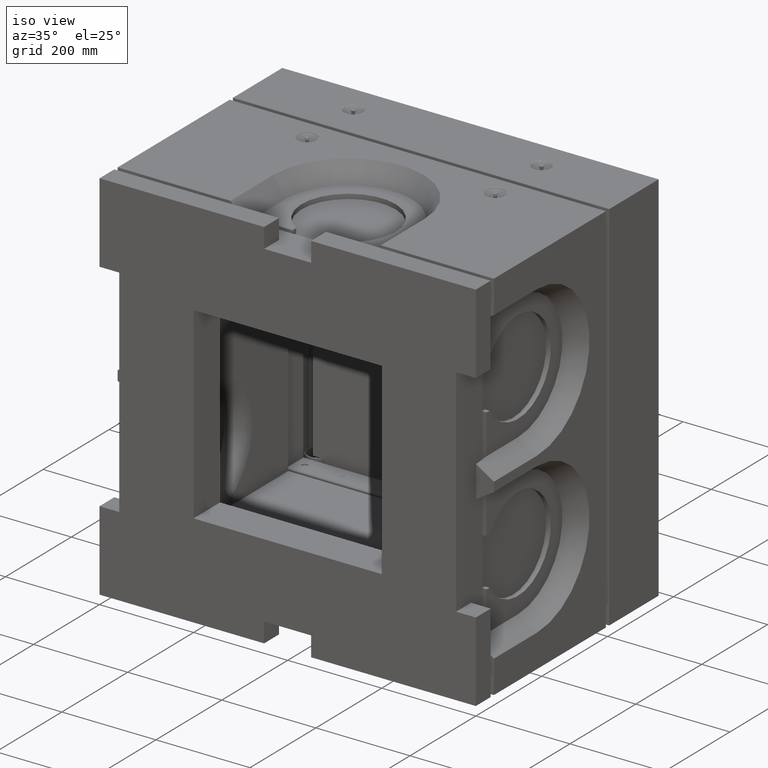
[diagram: clean part render]
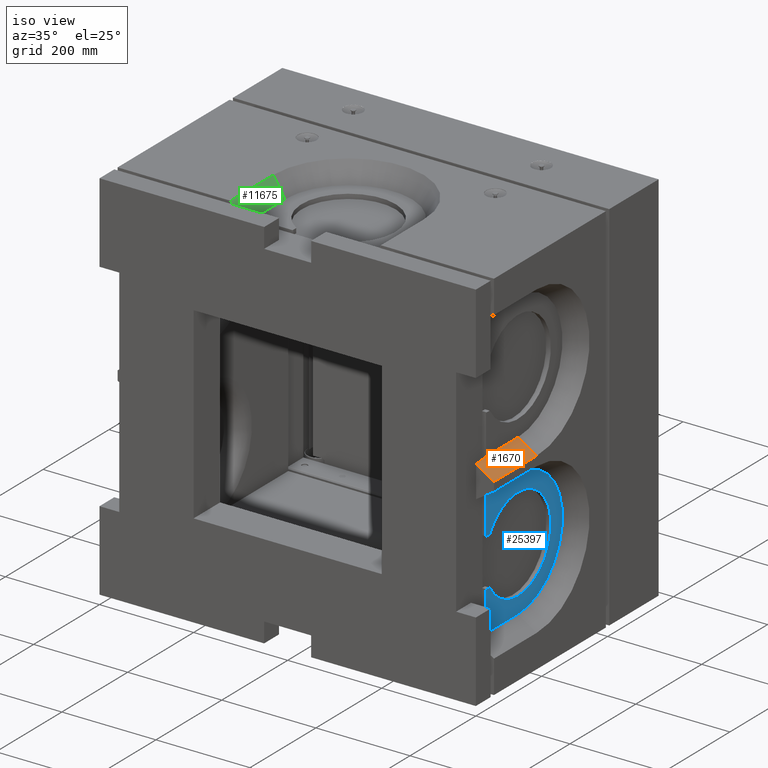
[diagram: same view with three faces highlighted in distinct colors, each labeled with its STEP entity id]
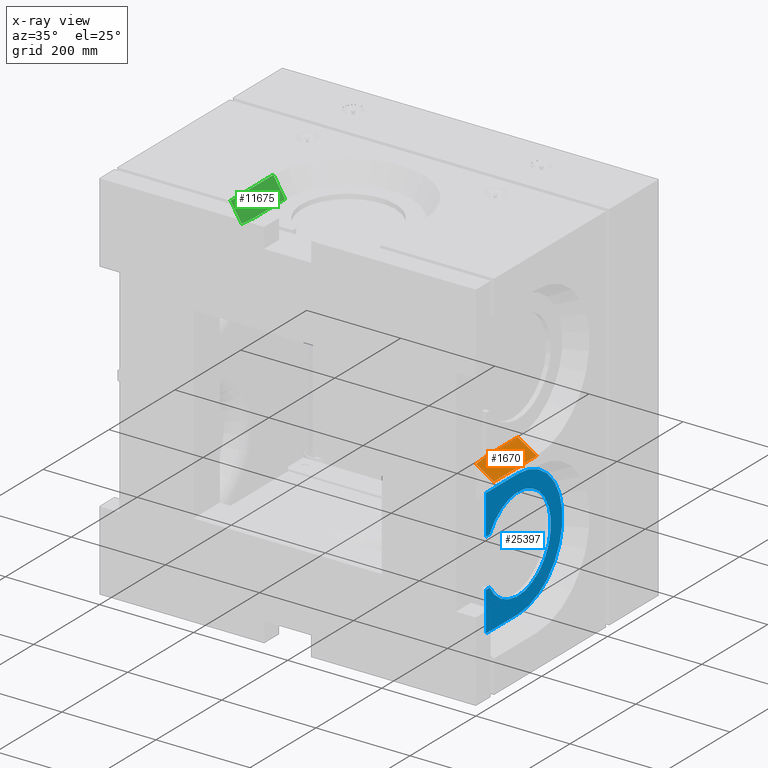
[diagram: x-ray of the same camera — body ghosted, the three highlighted faces saturated]
A machine part, iso view with three faces highlighted in distinct colors.
The next image is the same camera in x-ray (body ghosted, the three faces saturated) — at least one of them is partly hidden behind the body in this view.
Their STEP definitions:

[orange] entity #1670 — the highlighted planar face has unit normal (-0.5299, -0, -0.848).
#1172 = CARTESIAN_POINT ( 'NONE',  ( 399.9999999999999432, 54.99999999999999289, 10.00000000000006395 ) ) ;
#1670 = ADVANCED_FACE ( 'NONE', ( #7669 ), #19352, .F. ) ;
#3301 = EDGE_CURVE ( 'NONE', #21903, #15311, #13642, .T. ) ;
#3563 = VERTEX_POINT ( 'NONE', #1172 ) ;
#4047 = CARTESIAN_POINT ( 'NONE',  ( 362.0000000000000000, 54.99999999999999289, 33.74503537255446872 ) ) ;
#5375 = ORIENTED_EDGE ( 'NONE', *, *, #6649, .T. ) ;
#5612 = DIRECTION ( 'NONE',  ( -0.8480480961564252906, 0.0000000000000000000, 0.5299192642332060110 ) ) ;
#5616 = VECTOR ( 'NONE', #13542, 1000.000000000000114 ) ;
#6649 = EDGE_CURVE ( 'NONE', #9135, #21903, #11828, .T. ) ;
#6664 = ORIENTED_EDGE ( 'NONE', *, *, #3301, .T. ) ;
#6886 = EDGE_CURVE ( 'NONE', #9690, #3563, #16447, .T. ) ;
#7669 = FACE_OUTER_BOUND ( 'NONE', #12696, .T. ) ;
#8696 = VECTOR ( 'NONE', #10440, 1000.000000000000227 ) ;
#9135 = VERTEX_POINT ( 'NONE', #9435 ) ;
#9271 = LINE ( 'NONE', #23683, #19497 ) ;
#9435 = CARTESIAN_POINT ( 'NONE',  ( 360.0000000000000000, 184.9999999999999716, 34.99477407637319004 ) ) ;
#9690 = VERTEX_POINT ( 'NONE', #21637 ) ;
#10440 = DIRECTION ( 'NONE',  ( 0.06044789888667913280, -0.9974564273990266239, -0.03777203940159963580 ) ) ;
#10892 = LINE ( 'NONE', #25076, #5616 ) ;
#10896 = CARTESIAN_POINT ( 'NONE',  ( 399.9999999999999432, 184.9999999999999716, 10.00000000000000888 ) ) ;
#11828 = LINE ( 'NONE', #24060, #21672 ) ;
#12696 = EDGE_LOOP ( 'NONE', ( #24171, #24272, #5375, #6664, #15824 ) ) ;
#13469 = DIRECTION ( 'NONE',  ( -0.5299192642332060110, -1.883045044684784401E-16, -0.8480480961564252906 ) ) ;
#13542 = DIRECTION ( 'NONE',  ( -0.8480480961564252906, -0.0000000000000000000, 0.5299192642332060110 ) ) ;
#13642 = LINE ( 'NONE', #14317, #8696 ) ;
#14317 = CARTESIAN_POINT ( 'NONE',  ( 362.9035810601799312, 40.08992450106202199, 33.18041526108223138 ) ) ;
#14796 = EDGE_CURVE ( 'NONE', #9135, #9690, #9271, .T. ) ;
#15311 = VERTEX_POINT ( 'NONE', #4047 ) ;
#15824 = ORIENTED_EDGE ( 'NONE', *, *, #25229, .F. ) ;
#16447 = LINE ( 'NONE', #10896, #24699 ) ;
#19085 = DIRECTION ( 'NONE',  ( -0.0000000000000000000, -1.000000000000000000, 2.220446049250313574E-16 ) ) ;
#19352 = PLANE ( 'NONE',  #25558 ) ;
#19405 = DIRECTION ( 'NONE',  ( 0.8480480961564252906, -1.176657136688255272E-16, -0.5299192642332060110 ) ) ;
#19497 = VECTOR ( 'NONE', #19405, 1000.000000000000114 ) ;
#20902 = CARTESIAN_POINT ( 'NONE',  ( 360.0000000000000000, 88.00218686737001406, 34.99477407637313320 ) ) ;
#21637 = CARTESIAN_POINT ( 'NONE',  ( 399.9999999999999432, 184.9999999999999716, 10.00000000000000888 ) ) ;
#21672 = VECTOR ( 'NONE', #22191, 1000.000000000000000 ) ;
#21903 = VERTEX_POINT ( 'NONE', #20902 ) ;
#22191 = DIRECTION ( 'NONE',  ( -0.0000000000000000000, -1.000000000000000000, 2.220446049250313574E-16 ) ) ;
#23683 = CARTESIAN_POINT ( 'NONE',  ( 399.9999999999999432, 184.9999999999999716, 10.00000000000000888 ) ) ;
#24060 = CARTESIAN_POINT ( 'NONE',  ( 360.0000000000000000, 184.9999999999999716, 34.99477407637313320 ) ) ;
#24171 = ORIENTED_EDGE ( 'NONE', *, *, #6886, .F. ) ;
#24272 = ORIENTED_EDGE ( 'NONE', *, *, #14796, .F. ) ;
#24699 = VECTOR ( 'NONE', #19085, 1000.000000000000000 ) ;
#25076 = CARTESIAN_POINT ( 'NONE',  ( -350.6132977439678484, 54.99999999999999289, 479.0352448957975184 ) ) ;
#25229 = EDGE_CURVE ( 'NONE', #3563, #15311, #10892, .T. ) ;
#25259 = CARTESIAN_POINT ( 'NONE',  ( 399.9999999999999432, 184.9999999999999716, 10.00000000000000888 ) ) ;
#25558 = AXIS2_PLACEMENT_3D ( 'NONE', #25259, #13469, #5612 ) ;

[blue] entity #25397 — the highlighted planar face has unit normal (1, 0, -0).
#49 = VERTEX_POINT ( 'NONE', #21788 ) ;
#612 = CARTESIAN_POINT ( 'NONE',  ( 359.9999999999999432, 98.98255990788840109, -220.9999999999999147 ) ) ;
#1159 = LINE ( 'NONE', #18587, #20897 ) ;
#1287 = CARTESIAN_POINT ( 'NONE',  ( 360.0000000000000000, 184.9999999999999716, -305.0052259236268242 ) ) ;
#1635 = CARTESIAN_POINT ( 'NONE',  ( 360.0000000000000000, 88.00218686737007090, -34.99477407637313320 ) ) ;
#1824 = VECTOR ( 'NONE', #14709, 1000.000000000000000 ) ;
#2400 = VECTOR ( 'NONE', #16762, 1000.000000000000000 ) ;
#2445 = EDGE_CURVE ( 'NONE', #14353, #49, #11183, .T. ) ;
#2504 = PLANE ( 'NONE',  #15656 ) ;
#3324 = LINE ( 'NONE', #8566, #1824 ) ;
#3811 = VECTOR ( 'NONE', #5639, 1000.000000000000000 ) ;
#4225 = CIRCLE ( 'NONE', #7477, 135.0052259236268526 ) ;
#4543 = EDGE_CURVE ( 'NONE', #18458, #21763, #3324, .T. ) ;
#4544 = DIRECTION ( 'NONE',  ( 0.0000000000000000000, 0.0000000000000000000, 1.000000000000000000 ) ) ;
#4818 = LINE ( 'NONE', #9213, #2400 ) ;
#5029 = DIRECTION ( 'NONE',  ( 0.0000000000000000000, 3.162965100408823905E-16, -1.000000000000000000 ) ) ;
#5179 = EDGE_CURVE ( 'NONE', #10261, #14353, #1159, .T. ) ;
#5186 = CARTESIAN_POINT ( 'NONE',  ( 359.9999999999999432, 185.0000000000000000, -169.9999999999999716 ) ) ;
#5206 = CARTESIAN_POINT ( 'NONE',  ( 360.0000000000000000, 88.00218686737018459, -361.9999999999999432 ) ) ;
#5399 = LINE ( 'NONE', #7366, #3811 ) ;
#5443 = DIRECTION ( 'NONE',  ( -1.000000000000000000, -0.0000000000000000000, 0.0000000000000000000 ) ) ;
#5639 = DIRECTION ( 'NONE',  ( -0.0000000000000000000, 1.000000000000000000, -2.220446049250313081E-16 ) ) ;
#5717 = ORIENTED_EDGE ( 'NONE', *, *, #2445, .T. ) ;
#6035 = ORIENTED_EDGE ( 'NONE', *, *, #10014, .F. ) ;
#6139 = ORIENTED_EDGE ( 'NONE', *, *, #15038, .T. ) ;
#6486 = LINE ( 'NONE', #5206, #21301 ) ;
#6549 = FACE_OUTER_BOUND ( 'NONE', #13751, .T. ) ;
#6949 = DIRECTION ( 'NONE',  ( 0.0000000000000000000, -1.000000000000000000, 0.0000000000000000000 ) ) ;
#7366 = CARTESIAN_POINT ( 'NONE',  ( 360.0000000000000000, 185.0000000000000284, -34.99477407637313320 ) ) ;
#7477 = AXIS2_PLACEMENT_3D ( 'NONE', #19305, #9626, #19393 ) ;
#8304 = CARTESIAN_POINT ( 'NONE',  ( 360.0000000000000000, 88.00218686737011353, -305.0052259236268242 ) ) ;
#8566 = CARTESIAN_POINT ( 'NONE',  ( 360.0000000000000000, 88.00218686737018459, -361.9999999999999432 ) ) ;
#8864 = DIRECTION ( 'NONE',  ( 0.0000000000000000000, 1.000000000000000000, 0.0000000000000000000 ) ) ;
#9213 = CARTESIAN_POINT ( 'NONE',  ( 360.0000000000000000, 185.0000000000000000, -305.0052259236268242 ) ) ;
#9346 = ORIENTED_EDGE ( 'NONE', *, *, #5179, .T. ) ;
#9357 = VECTOR ( 'NONE', #6949, 1000.000000000000000 ) ;
#9626 = DIRECTION ( 'NONE',  ( -1.000000000000000000, -0.0000000000000000000, -0.0000000000000000000 ) ) ;
#10014 = EDGE_CURVE ( 'NONE', #22804, #14661, #4225, .T. ) ;
#10261 = VERTEX_POINT ( 'NONE', #16305 ) ;
#10368 = CARTESIAN_POINT ( 'NONE',  ( 360.0000000000000000, 185.0000000000000000, -169.9999999999999716 ) ) ;
#10466 = EDGE_CURVE ( 'NONE', #49, #18458, #15534, .T. ) ;
#11183 = CIRCLE ( 'NONE', #14635, 100.0000000000000000 ) ;
#11760 = CARTESIAN_POINT ( 'NONE',  ( 360.0000000000000000, 185.0000000000000000, -34.99477407637313320 ) ) ;
#13270 = ORIENTED_EDGE ( 'NONE', *, *, #18229, .F. ) ;
#13751 = EDGE_LOOP ( 'NONE', ( #5717, #14110, #17724, #17628, #6035, #13270, #6139, #9346 ) ) ;
#14110 = ORIENTED_EDGE ( 'NONE', *, *, #10466, .T. ) ;
#14353 = VERTEX_POINT ( 'NONE', #16421 ) ;
#14635 = AXIS2_PLACEMENT_3D ( 'NONE', #5186, #5443, #23110 ) ;
#14661 = VERTEX_POINT ( 'NONE', #1287 ) ;
#14709 = DIRECTION ( 'NONE',  ( 0.0000000000000000000, 3.162965100408823905E-16, -1.000000000000000000 ) ) ;
#15038 = EDGE_CURVE ( 'NONE', #19813, #10261, #6486, .T. ) ;
#15534 = LINE ( 'NONE', #612, #9357 ) ;
#15656 = AXIS2_PLACEMENT_3D ( 'NONE', #10368, #24129, #4544 ) ;
#16305 = CARTESIAN_POINT ( 'NONE',  ( 359.9999999999999432, 88.00218686737011353, -118.9999999999999432 ) ) ;
#16421 = CARTESIAN_POINT ( 'NONE',  ( 360.0000000000000000, 98.98255990788848635, -118.9999999999999432 ) ) ;
#16697 = EDGE_CURVE ( 'NONE', #14661, #21763, #4818, .T. ) ;
#16762 = DIRECTION ( 'NONE',  ( -0.0000000000000000000, -1.000000000000000000, -0.0000000000000000000 ) ) ;
#17628 = ORIENTED_EDGE ( 'NONE', *, *, #16697, .F. ) ;
#17724 = ORIENTED_EDGE ( 'NONE', *, *, #4543, .T. ) ;
#18229 = EDGE_CURVE ( 'NONE', #19813, #22804, #5399, .T. ) ;
#18458 = VERTEX_POINT ( 'NONE', #23739 ) ;
#18587 = CARTESIAN_POINT ( 'NONE',  ( 360.0000000000000000, 185.0000000000000000, -118.9999999999999432 ) ) ;
#19305 = CARTESIAN_POINT ( 'NONE',  ( 360.0000000000000000, 185.0000000000000000, -169.9999999999999716 ) ) ;
#19393 = DIRECTION ( 'NONE',  ( 0.0000000000000000000, 0.0000000000000000000, -1.000000000000000000 ) ) ;
#19813 = VERTEX_POINT ( 'NONE', #1635 ) ;
#20897 = VECTOR ( 'NONE', #8864, 1000.000000000000000 ) ;
#21301 = VECTOR ( 'NONE', #5029, 1000.000000000000000 ) ;
#21763 = VERTEX_POINT ( 'NONE', #8304 ) ;
#21788 = CARTESIAN_POINT ( 'NONE',  ( 359.9999999999999432, 98.98255990788840109, -220.9999999999999147 ) ) ;
#22804 = VERTEX_POINT ( 'NONE', #11760 ) ;
#23110 = DIRECTION ( 'NONE',  ( 0.0000000000000000000, 0.0000000000000000000, 1.000000000000000000 ) ) ;
#23739 = CARTESIAN_POINT ( 'NONE',  ( 359.9999999999999432, 88.00218686737011353, -220.9999999999999147 ) ) ;
#24129 = DIRECTION ( 'NONE',  ( 1.000000000000000000, 0.0000000000000000000, -0.0000000000000000000 ) ) ;
#25397 = ADVANCED_FACE ( 'NONE', ( #6549 ), #2504, .T. ) ;

[green] entity #11675 — the highlighted planar face has unit normal (-0.848, 0, -0.5299).
#1503 = VERTEX_POINT ( 'NONE', #18775 ) ;
#1671 = EDGE_CURVE ( 'NONE', #15927, #22717, #25221, .T. ) ;
#2002 = CARTESIAN_POINT ( 'NONE',  ( -136.2549646274454744, 54.99999999999999289, 362.0000000000000000 ) ) ;
#3744 = CARTESIAN_POINT ( 'NONE',  ( -227.3954623853109922, 54.99999999999999289, 507.8552855559000818 ) ) ;
#3838 = VERTEX_POINT ( 'NONE', #24118 ) ;
#3903 = CARTESIAN_POINT ( 'NONE',  ( -135.0052259236269094, 88.00218686736988616, 360.0000000000000000 ) ) ;
#4023 = VECTOR ( 'NONE', #15455, 1000.000000000000000 ) ;
#4759 = CARTESIAN_POINT ( 'NONE',  ( -160.0000000000000853, -65.00000000000002842, 399.9999999999999432 ) ) ;
#4815 = CARTESIAN_POINT ( 'NONE',  ( -160.0000000000000853, -65.00000000000002842, 399.9999999999999432 ) ) ;
#6923 = EDGE_CURVE ( 'NONE', #3838, #17952, #10869, .T. ) ;
#8631 = FACE_OUTER_BOUND ( 'NONE', #15237, .T. ) ;
#8939 = DIRECTION ( 'NONE',  ( -0.5299192642332060110, 0.0000000000000000000, 0.8480480961564252906 ) ) ;
#9339 = AXIS2_PLACEMENT_3D ( 'NONE', #4815, #22677, #8939 ) ;
#9452 = LINE ( 'NONE', #22797, #17490 ) ;
#9964 = LINE ( 'NONE', #21371, #15535 ) ;
#10296 = ORIENTED_EDGE ( 'NONE', *, *, #1671, .T. ) ;
#10869 = LINE ( 'NONE', #23020, #4023 ) ;
#11675 = ADVANCED_FACE ( 'NONE', ( #8631 ), #24639, .F. ) ;
#12563 = DIRECTION ( 'NONE',  ( -0.0000000000000000000, -1.000000000000000000, 0.0000000000000000000 ) ) ;
#12959 = DIRECTION ( 'NONE',  ( -0.5299192642332060110, 9.192633880376989613E-17, 0.8480480961564252906 ) ) ;
#13607 = EDGE_CURVE ( 'NONE', #3838, #1503, #9452, .T. ) ;
#14225 = LINE ( 'NONE', #4759, #18844 ) ;
#15237 = EDGE_LOOP ( 'NONE', ( #10296, #21611, #17084, #17556, #15629 ) ) ;
#15455 = DIRECTION ( 'NONE',  ( 0.0000000000000000000, -1.000000000000000000, 0.0000000000000000000 ) ) ;
#15535 = VECTOR ( 'NONE', #21625, 1000.000000000000227 ) ;
#15629 = ORIENTED_EDGE ( 'NONE', *, *, #20275, .T. ) ;
#15927 = VERTEX_POINT ( 'NONE', #21341 ) ;
#17084 = ORIENTED_EDGE ( 'NONE', *, *, #6923, .F. ) ;
#17490 = VECTOR ( 'NONE', #12959, 1000.000000000000114 ) ;
#17556 = ORIENTED_EDGE ( 'NONE', *, *, #13607, .T. ) ;
#17952 = VERTEX_POINT ( 'NONE', #3903 ) ;
#18775 = CARTESIAN_POINT ( 'NONE',  ( -160.0000000000000853, 185.0000000000000000, 399.9999999999999432 ) ) ;
#18844 = VECTOR ( 'NONE', #12563, 1000.000000000000000 ) ;
#19306 = EDGE_CURVE ( 'NONE', #17952, #22717, #9964, .T. ) ;
#19708 = DIRECTION ( 'NONE',  ( 0.5299192642332060110, 0.0000000000000000000, -0.8480480961564252906 ) ) ;
#20275 = EDGE_CURVE ( 'NONE', #1503, #15927, #14225, .T. ) ;
#21341 = CARTESIAN_POINT ( 'NONE',  ( -160.0000000000000853, 54.99999999999999289, 399.9999999999999432 ) ) ;
#21371 = CARTESIAN_POINT ( 'NONE',  ( -135.5440908361806294, 73.77223584958491642, 360.8623641260485329 ) ) ;
#21611 = ORIENTED_EDGE ( 'NONE', *, *, #19306, .F. ) ;
#21625 = DIRECTION ( 'NONE',  ( -0.03777203940159985091, -0.9974564273990266239, 0.06044789888667913280 ) ) ;
#22161 = VECTOR ( 'NONE', #19708, 1000.000000000000114 ) ;
#22677 = DIRECTION ( 'NONE',  ( -0.8480480961564252906, 0.0000000000000000000, -0.5299192642332060110 ) ) ;
#22717 = VERTEX_POINT ( 'NONE', #2002 ) ;
#22797 = CARTESIAN_POINT ( 'NONE',  ( -160.0000000000000853, 185.0000000000000284, 399.9999999999999432 ) ) ;
#23020 = CARTESIAN_POINT ( 'NONE',  ( -135.0052259236269094, 185.0000000000000000, 360.0000000000000000 ) ) ;
#24118 = CARTESIAN_POINT ( 'NONE',  ( -135.0052259236269094, 185.0000000000000284, 360.0000000000000000 ) ) ;
#24639 = PLANE ( 'NONE',  #9339 ) ;
#25221 = LINE ( 'NONE', #3744, #22161 ) ;